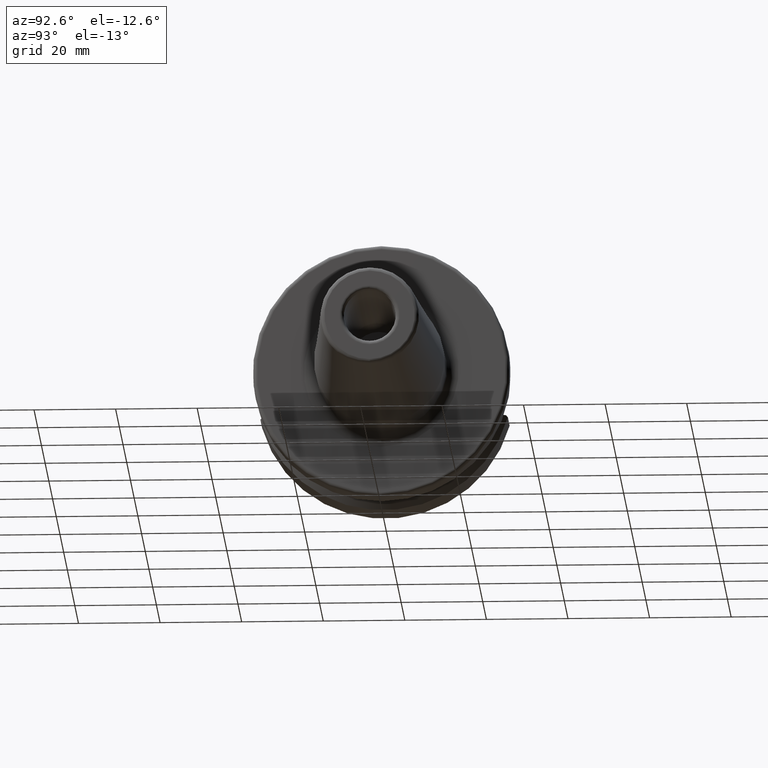
[diagram: clean part render]
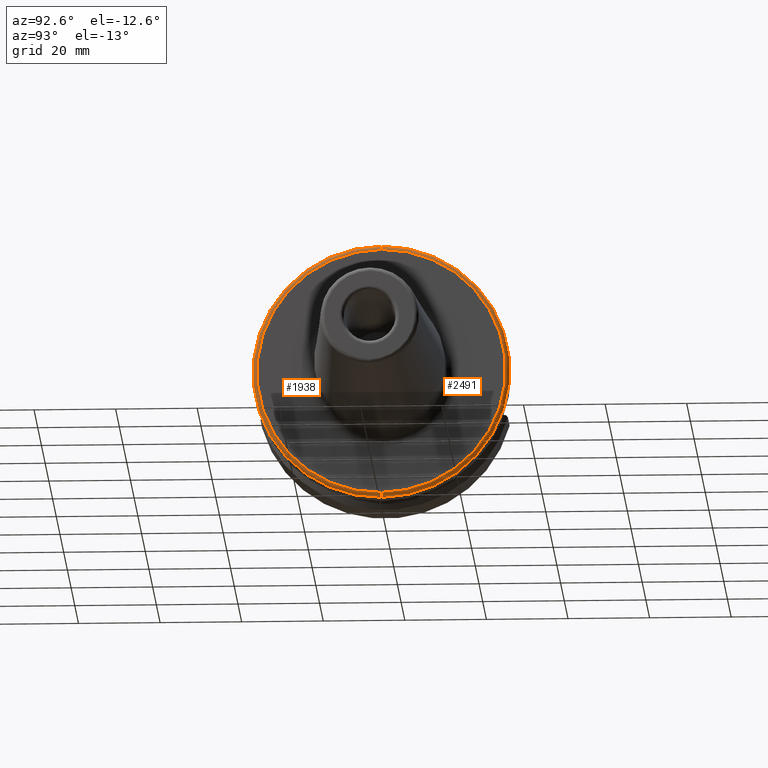
[diagram: same view with one multi-face feature highlighted, each face labeled with its STEP entity id]
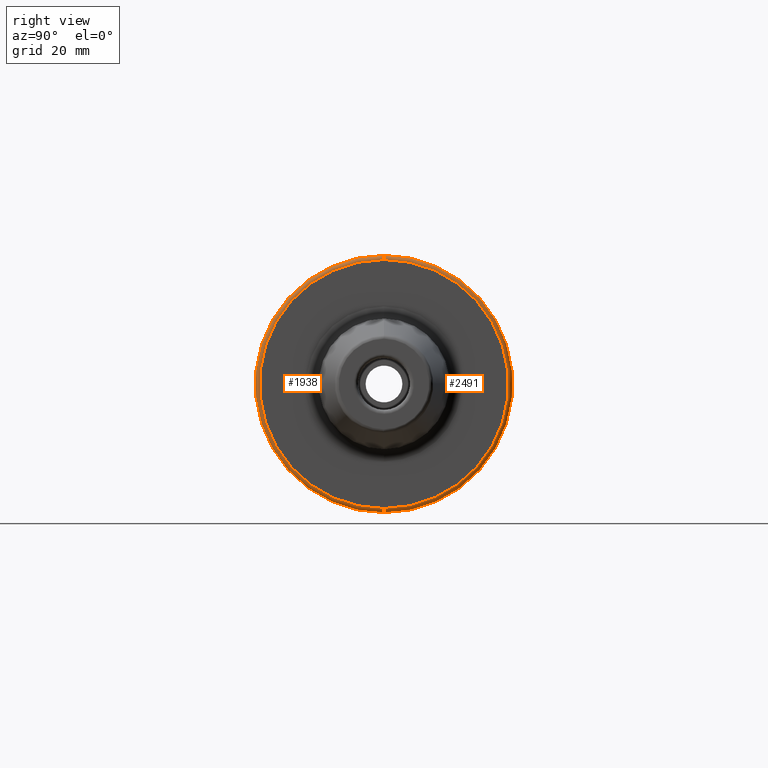
[diagram: same view with one multi-face feature highlighted, each face labeled with its STEP entity id]
A machine part, auxiliary view. The highlighted faces form ONE feature: a constant-radius fillet chain: 2 tangent blend faces with common blend radius 1 mm. The faces share edges in the B-rep.
A second angle (right view) of the same feature is appended — it is thin or edge-on in the first view.
Their STEP definitions:
[1] entity #2491 (Torus):
#468=CARTESIAN_POINT('',(2.7E1,0.E0,0.E0));
#469=DIRECTION('',(-1.E0,0.E0,0.E0));
#470=DIRECTION('',(0.E0,0.E0,1.E0));
#471=AXIS2_PLACEMENT_3D('',#468,#469,#470);
#483=CARTESIAN_POINT('',(2.6E1,-3.677058657559E-13,-3.05E1));
#484=DIRECTION('',(0.E0,-1.E0,1.201816424157E-14));
#485=DIRECTION('',(0.E0,-1.201816424157E-14,-1.E0));
#486=AXIS2_PLACEMENT_3D('',#483,#484,#485);
#737=CARTESIAN_POINT('',(2.6E1,0.E0,0.E0));
#738=DIRECTION('',(-1.E0,0.E0,0.E0));
#739=DIRECTION('',(0.E0,0.E0,1.E0));
#740=AXIS2_PLACEMENT_3D('',#737,#738,#739);
#978=CARTESIAN_POINT('',(2.6E1,-4.005518139394E-12,3.05E1));
#979=DIRECTION('',(0.E0,1.E0,1.313289754723E-13));
#980=DIRECTION('',(0.E0,-1.313289754723E-13,1.E0));
#981=AXIS2_PLACEMENT_3D('',#978,#979,#980);
#1026=CARTESIAN_POINT('',(2.6E1,0.E0,-3.15E1));
#1027=CARTESIAN_POINT('',(2.6E1,0.E0,3.15E1));
#1028=VERTEX_POINT('',#1026);
#1029=VERTEX_POINT('',#1027);
#1030=CARTESIAN_POINT('',(2.7E1,0.E0,-3.05E1));
#1031=CARTESIAN_POINT('',(2.7E1,0.E0,3.05E1));
#1032=VERTEX_POINT('',#1030);
#1033=VERTEX_POINT('',#1031);
#2480=CARTESIAN_POINT('',(2.6E1,0.E0,0.E0));
#2481=DIRECTION('',(-1.E0,0.E0,0.E0));
#2482=DIRECTION('',(0.E0,-6.569083321303E-3,9.999784233394E-1));
#2483=AXIS2_PLACEMENT_3D('',#2480,#2481,#2482);
#2484=TOROIDAL_SURFACE('',#2483,3.05E1,1.E0);
#2485=ORIENTED_EDGE('',*,*,#2197,.T.);
#2486=ORIENTED_EDGE('',*,*,#1934,.T.);
#2487=ORIENTED_EDGE('',*,*,#1914,.F.);
#2488=ORIENTED_EDGE('',*,*,#1931,.F.);
#2489=EDGE_LOOP('',(#2485,#2486,#2487,#2488));
#2490=FACE_OUTER_BOUND('',#2489,.F.);
#2491=ADVANCED_FACE('',(#2490),#2484,.T.);
#472=CIRCLE('',#471,3.05E1);
#487=CIRCLE('',#486,1.E0);
#741=CIRCLE('',#740,3.15E1);
#982=CIRCLE('',#981,1.E0);
#1914=EDGE_CURVE('',#1033,#1032,#472,.T.);
#1931=EDGE_CURVE('',#1029,#1033,#982,.T.);
#1934=EDGE_CURVE('',#1028,#1032,#487,.T.);
#2197=EDGE_CURVE('',#1029,#1028,#741,.T.);
[2] entity #1938 (Torus):
#463=CARTESIAN_POINT('',(2.7E1,0.E0,0.E0));
#464=DIRECTION('',(-1.E0,0.E0,0.E0));
#465=DIRECTION('',(0.E0,0.E0,-1.E0));
#466=AXIS2_PLACEMENT_3D('',#463,#464,#465);
#483=CARTESIAN_POINT('',(2.6E1,-3.677058657559E-13,-3.05E1));
#484=DIRECTION('',(0.E0,-1.E0,1.201816424157E-14));
#485=DIRECTION('',(0.E0,-1.201816424157E-14,-1.E0));
#486=AXIS2_PLACEMENT_3D('',#483,#484,#485);
#500=CARTESIAN_POINT('',(2.6E1,0.E0,0.E0));
#501=DIRECTION('',(-1.E0,0.E0,0.E0));
#502=DIRECTION('',(0.E0,0.E0,-1.E0));
#503=AXIS2_PLACEMENT_3D('',#500,#501,#502);
#978=CARTESIAN_POINT('',(2.6E1,-4.005518139394E-12,3.05E1));
#979=DIRECTION('',(0.E0,1.E0,1.313289754723E-13));
#980=DIRECTION('',(0.E0,-1.313289754723E-13,1.E0));
#981=AXIS2_PLACEMENT_3D('',#978,#979,#980);
#1026=CARTESIAN_POINT('',(2.6E1,0.E0,-3.15E1));
#1027=CARTESIAN_POINT('',(2.6E1,0.E0,3.15E1));
#1028=VERTEX_POINT('',#1026);
#1029=VERTEX_POINT('',#1027);
#1030=CARTESIAN_POINT('',(2.7E1,0.E0,-3.05E1));
#1031=CARTESIAN_POINT('',(2.7E1,0.E0,3.05E1));
#1032=VERTEX_POINT('',#1030);
#1033=VERTEX_POINT('',#1031);
#1924=CARTESIAN_POINT('',(2.6E1,0.E0,0.E0));
#1925=DIRECTION('',(-1.E0,0.E0,0.E0));
#1926=DIRECTION('',(0.E0,9.684522776956E-1,-2.491990887348E-1));
#1927=AXIS2_PLACEMENT_3D('',#1924,#1925,#1926);
#1928=TOROIDAL_SURFACE('',#1927,3.05E1,1.E0);
#1930=ORIENTED_EDGE('',*,*,#1929,.T.);
#1932=ORIENTED_EDGE('',*,*,#1931,.T.);
#1933=ORIENTED_EDGE('',*,*,#1912,.F.);
#1935=ORIENTED_EDGE('',*,*,#1934,.F.);
#1936=EDGE_LOOP('',(#1930,#1932,#1933,#1935));
#1937=FACE_OUTER_BOUND('',#1936,.F.);
#1938=ADVANCED_FACE('',(#1937),#1928,.T.);
#467=CIRCLE('',#466,3.05E1);
#487=CIRCLE('',#486,1.E0);
#504=CIRCLE('',#503,3.15E1);
#982=CIRCLE('',#981,1.E0);
#1912=EDGE_CURVE('',#1032,#1033,#467,.T.);
#1929=EDGE_CURVE('',#1028,#1029,#504,.T.);
#1931=EDGE_CURVE('',#1029,#1033,#982,.T.);
#1934=EDGE_CURVE('',#1028,#1032,#487,.T.);